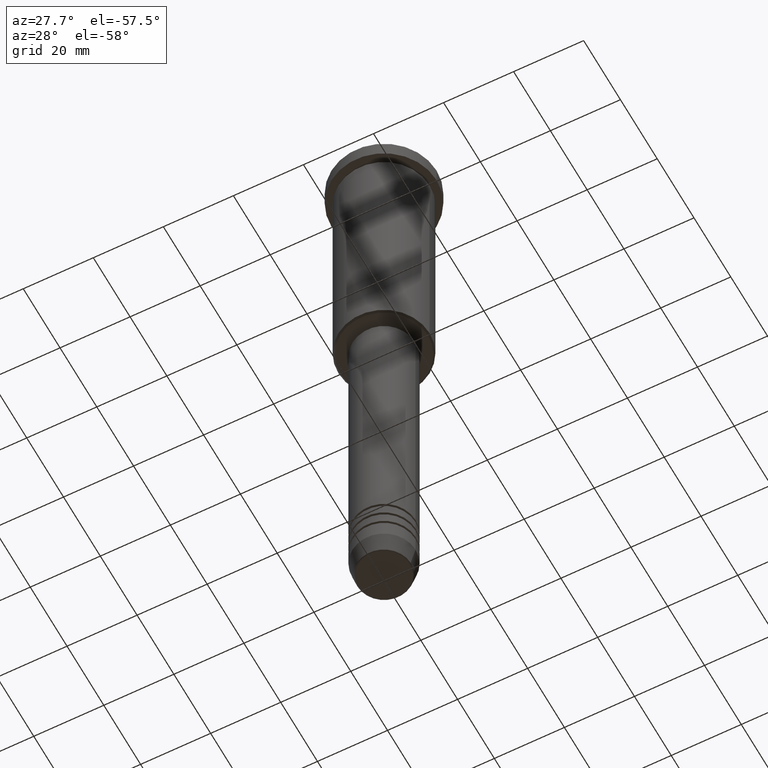
[diagram: clean part render]
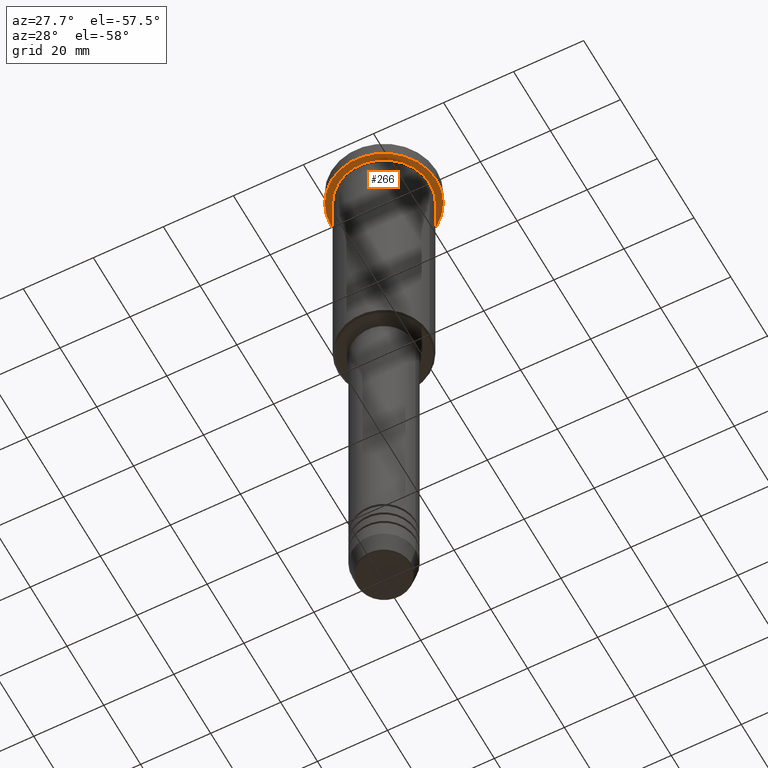
[diagram: same view with one face highlighted and labeled with its STEP entity id]
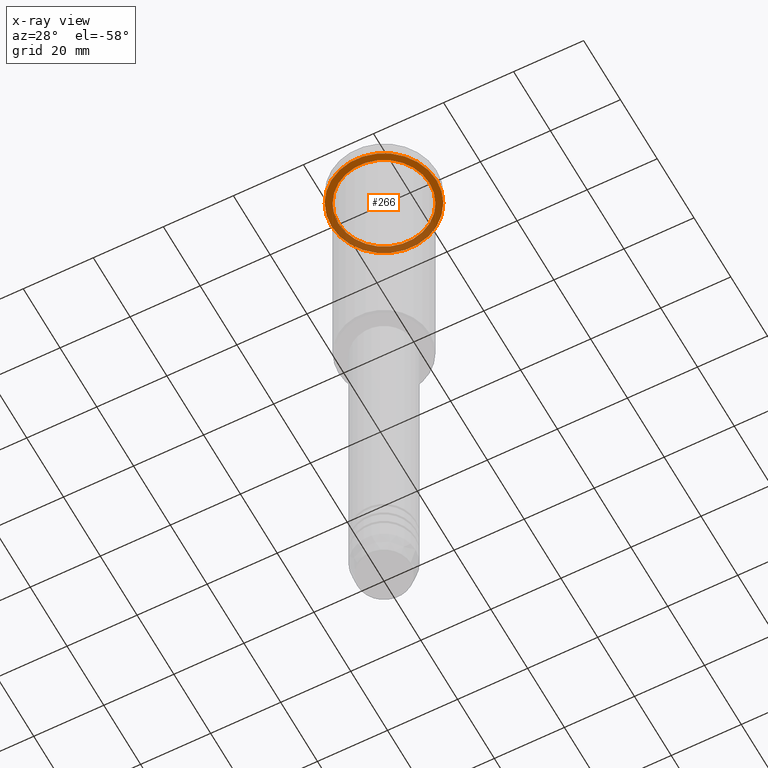
[diagram: x-ray of the same camera — body ghosted, the highlighted face saturated]
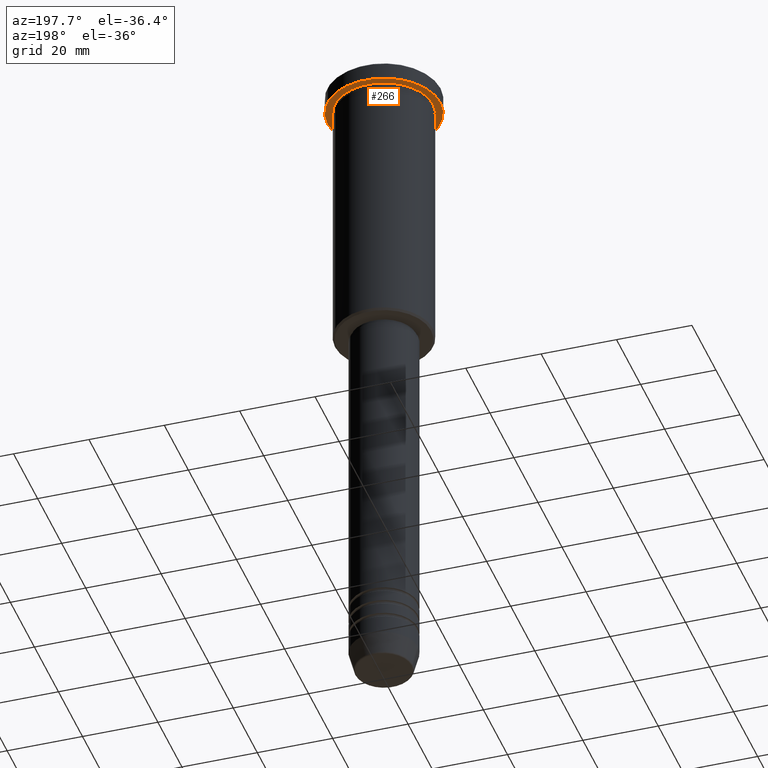
[diagram: same view with one face highlighted and labeled with its STEP entity id]
A machine part, auxiliary view. The second image highlights one B-rep face of the part: STEP entity #266.
The next image is the same camera in x-ray: the body ghosted, the highlighted face saturated — about 36% of this face is hidden behind the body in this view.
A second angle (auxiliary view) of the same face is appended — the face is thin or edge-on in the first view.
In plain terms, the highlighted planar face has unit normal (0, 0, -1).
Its self-contained STEP definition (entity closure, byte-faithful):
#2 = CARTESIAN_POINT ( 'NONE',  ( 0.000000000000000000, 0.000000000000000000, -4.999999999999999112 ) ) ;
#6 = CARTESIAN_POINT ( 'NONE',  ( 13.00000000000000000, 1.592040838891559095E-15, -4.999999999999999112 ) ) ;
#30 = DIRECTION ( 'NONE',  ( -1.000000000000000000, 0.000000000000000000, 0.000000000000000000 ) ) ;
#37 = DIRECTION ( 'NONE',  ( -1.000000000000000000, 0.000000000000000000, -0.000000000000000000 ) ) ;
#39 = DIRECTION ( 'NONE',  ( -1.000000000000000000, 0.000000000000000000, 0.000000000000000000 ) ) ;
#41 = CARTESIAN_POINT ( 'NONE',  ( 0.000000000000000000, 0.000000000000000000, -4.999999999999999112 ) ) ;
#54 = DIRECTION ( 'NONE',  ( -0.000000000000000000, -0.000000000000000000, 1.000000000000000000 ) ) ;
#80 = DIRECTION ( 'NONE',  ( 1.000000000000000000, 0.000000000000000000, 0.000000000000000000 ) ) ;
#86 = AXIS2_PLACEMENT_3D ( 'NONE', #41, #54, #895 ) ;
#93 = ORIENTED_EDGE ( 'NONE', *, *, #913, .F. ) ;
#130 = DIRECTION ( 'NONE',  ( 0.000000000000000000, 0.000000000000000000, -1.000000000000000000 ) ) ;
#133 = EDGE_CURVE ( 'NONE', #1116, #1021, #466, .T. ) ;
#194 = AXIS2_PLACEMENT_3D ( 'NONE', #2, #1177, #80 ) ;
#203 = CIRCLE ( 'NONE', #554, 13.00000000000000000 ) ;
#245 = ORIENTED_EDGE ( 'NONE', *, *, #683, .T. ) ;
#266 = ADVANCED_FACE ( 'NONE', ( #803, #1057 ), #394, .T. ) ;
#321 = AXIS2_PLACEMENT_3D ( 'NONE', #1046, #746, #30 ) ;
#328 = CARTESIAN_POINT ( 'NONE',  ( -13.00000000000000000, 0.000000000000000000, -4.999999999999999112 ) ) ;
#338 = ORIENTED_EDGE ( 'NONE', *, *, #133, .F. ) ;
#387 = EDGE_CURVE ( 'NONE', #1149, #919, #203, .T. ) ;
#394 = PLANE ( 'NONE',  #599 ) ;
#466 = CIRCLE ( 'NONE', #194, 15.00000000000000000 ) ;
#554 = AXIS2_PLACEMENT_3D ( 'NONE', #674, #1130, #39 ) ;
#599 = AXIS2_PLACEMENT_3D ( 'NONE', #762, #130, #37 ) ;
#616 = CIRCLE ( 'NONE', #86, 15.00000000000000000 ) ;
#674 = CARTESIAN_POINT ( 'NONE',  ( 0.000000000000000000, 0.000000000000000000, -4.999999999999999112 ) ) ;
#683 = EDGE_CURVE ( 'NONE', #919, #1149, #1146, .T. ) ;
#694 = EDGE_LOOP ( 'NONE', ( #93, #338 ) ) ;
#746 = DIRECTION ( 'NONE',  ( -0.000000000000000000, -0.000000000000000000, 1.000000000000000000 ) ) ;
#762 = CARTESIAN_POINT ( 'NONE',  ( 0.000000000000000000, 15.00000000000000000, -4.999999999999999112 ) ) ;
#803 = FACE_BOUND ( 'NONE', #1017, .T. ) ;
#835 = CARTESIAN_POINT ( 'NONE',  ( 15.00000000000000000, 0.000000000000000000, -4.999999999999999112 ) ) ;
#895 = DIRECTION ( 'NONE',  ( 1.000000000000000000, 0.000000000000000000, 0.000000000000000000 ) ) ;
#913 = EDGE_CURVE ( 'NONE', #1021, #1116, #616, .T. ) ;
#919 = VERTEX_POINT ( 'NONE', #328 ) ;
#1017 = EDGE_LOOP ( 'NONE', ( #245, #1139 ) ) ;
#1021 = VERTEX_POINT ( 'NONE', #835 ) ;
#1046 = CARTESIAN_POINT ( 'NONE',  ( 0.000000000000000000, 0.000000000000000000, -4.999999999999999112 ) ) ;
#1055 = CARTESIAN_POINT ( 'NONE',  ( -15.00000000000000000, 1.836970198721029589E-15, -4.999999999999999112 ) ) ;
#1057 = FACE_OUTER_BOUND ( 'NONE', #694, .T. ) ;
#1116 = VERTEX_POINT ( 'NONE', #1055 ) ;
#1130 = DIRECTION ( 'NONE',  ( -0.000000000000000000, -0.000000000000000000, 1.000000000000000000 ) ) ;
#1139 = ORIENTED_EDGE ( 'NONE', *, *, #387, .T. ) ;
#1146 = CIRCLE ( 'NONE', #321, 13.00000000000000000 ) ;
#1149 = VERTEX_POINT ( 'NONE', #6 ) ;
#1177 = DIRECTION ( 'NONE',  ( -0.000000000000000000, -0.000000000000000000, 1.000000000000000000 ) ) ;